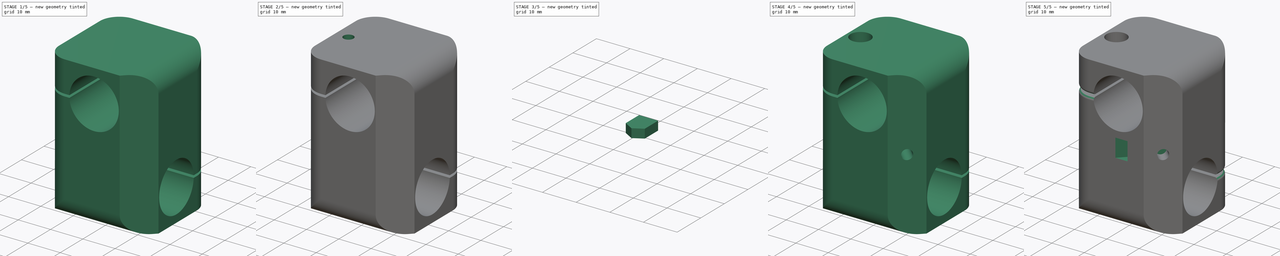
[diagram: build sequence overview — one tinted view per stage of 5, left to right]
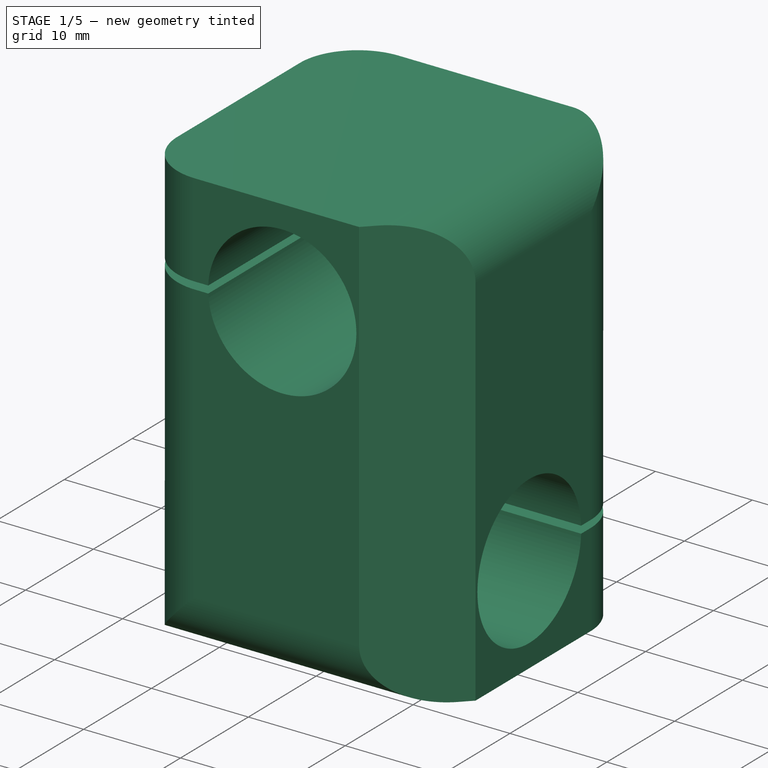
[diagram: stage 1 of 5 — iso view after this stage's code; geometry added in this stage tinted green]
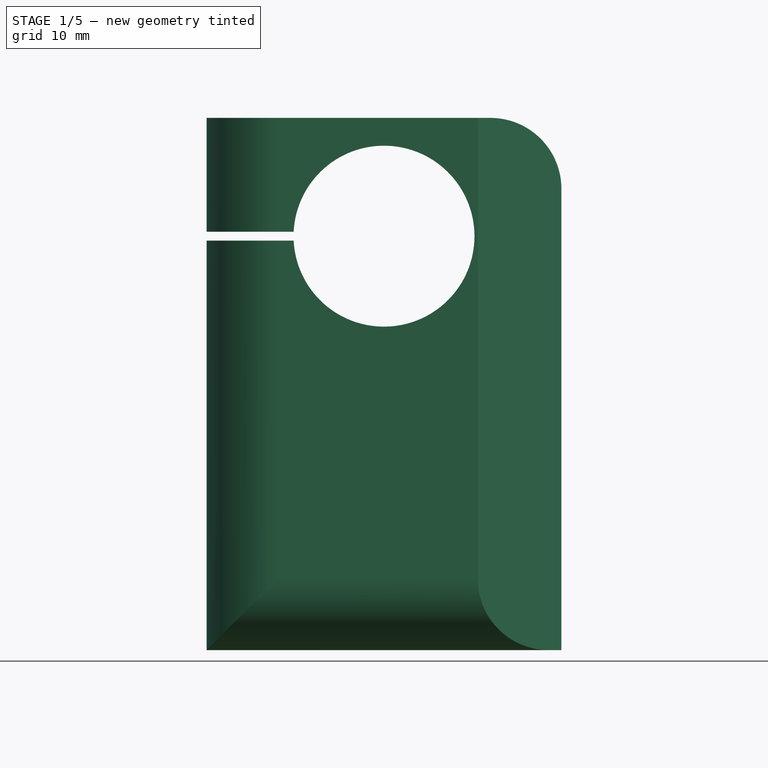
[diagram: stage 1 of 5 — front view after this stage's code; geometry added in this stage tinted green]
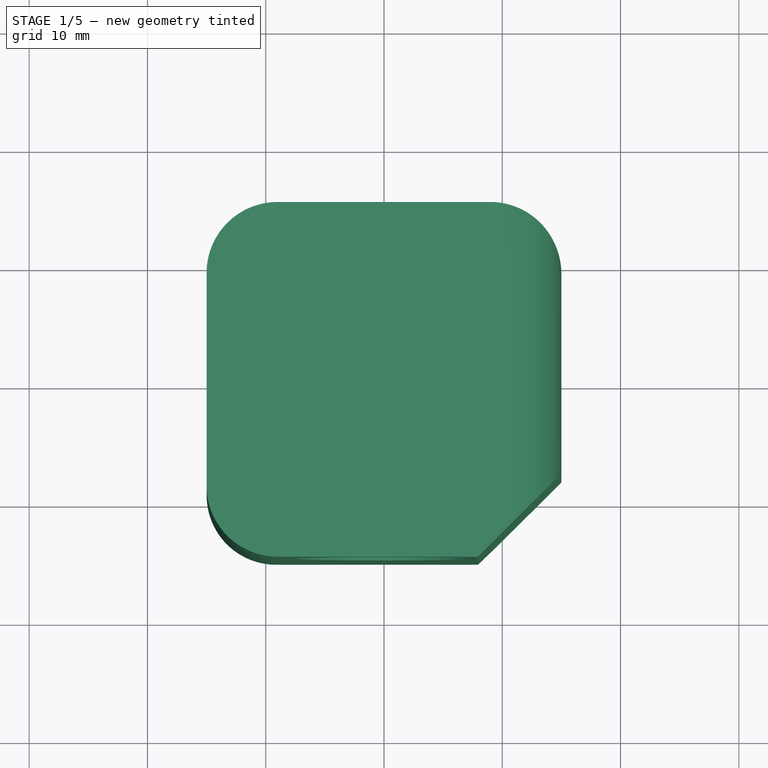
[diagram: stage 1 of 5 — top view after this stage's code; geometry added in this stage tinted green]
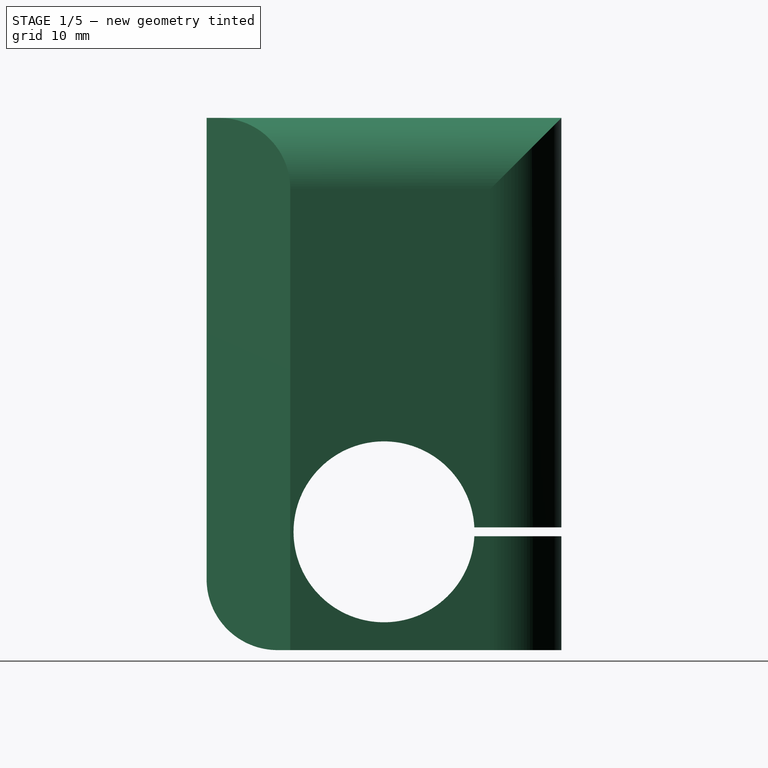
[diagram: stage 1 of 5 — right view after this stage's code; geometry added in this stage tinted green]
FCSTD DOCUMENT  (FreeCAD 0.16RUnknown)
Label: xy-bearings-mount.001
License: All rights reserved
LicenseURL: http://en.wikipedia.org/wiki/All_rights_reserved
objects: Sketcher::SketchObject×11, PartDesign::Pocket×7, Part::Extrusion×4, Part::Cut×3, Part::Fillet×1
note: 33 computed .brp shape members not serialized (recipe doc carries the construction recipe); baked Part::Feature solids carry a one-line shape summary decoded from their .brp

FEATURE [Sketcher::SketchObject] Sketch
  sketch-geometry (16):
    g0: LineSegment StartX=15 StartY=-7.92893 StartZ=0 EndX=7.92893 EndY=-15 EndZ=0
    g1: LineSegment StartX=7.92893 StartY=-15 StartZ=0 EndX=-9 EndY=-15 EndZ=0
    g2: LineSegment StartX=-15 StartY=-9 StartZ=0 EndX=-15 EndY=9 EndZ=0
    g3: LineSegment StartX=-9 StartY=15 StartZ=0 EndX=9 EndY=15 EndZ=0
    g4: LineSegment StartX=15 StartY=9 StartZ=0 EndX=15 EndY=-7.92893 EndZ=0
    g5: LineSegment [constr] StartX=-15 StartY=-9 StartZ=0 EndX=-9 EndY=-9 EndZ=0
    g6: LineSegment [constr] StartX=-9 StartY=-9 StartZ=0 EndX=-9 EndY=-15 EndZ=0
    g7: LineSegment [constr] StartX=-15 StartY=9 StartZ=0 EndX=-9 EndY=9 EndZ=0
    g8: LineSegment [constr] StartX=-9 StartY=9 StartZ=0 EndX=-9 EndY=15 EndZ=0
    g9: LineSegment [constr] StartX=9 StartY=15 StartZ=0 EndX=9 EndY=9 EndZ=0
    g10: LineSegment [constr] StartX=9 StartY=9 StartZ=0 EndX=15 EndY=9 EndZ=0
    g11: ArcOfCircle CenterX=-9 CenterY=9 CenterZ=0 NormalX=0 NormalY=0 NormalZ=1 Radius=6 StartAngle=1.5708 EndAngle=3.14159
    g12: ArcOfCircle CenterX=9 CenterY=9 CenterZ=0 NormalX=0 NormalY=0 NormalZ=1 Radius=6 StartAngle=0 EndAngle=1.5708
    g13: ArcOfCircle CenterX=-9 CenterY=-9 CenterZ=0 NormalX=0 NormalY=0 NormalZ=1 Radius=6 StartAngle=3.14159 EndAngle=4.71239
    g14: LineSegment [constr] StartX=-9 StartY=-9 StartZ=0 EndX=0 EndY=0 EndZ=0
    g15: LineSegment [constr] StartX=0 StartY=0 StartZ=0 EndX=9 EndY=9 EndZ=0
  constraints (43):
    c: Distance(g0) = 10
    c: Horizontal(g1)
    c: Vertical(g2)
    c: Horizontal(g3)
    c: Vertical(g4)
    c: Coincident(g0,g4)
    c: Coincident(g0,g1)
    c: Horizontal(g5)
    c: Coincident(g5,g6)
    c: Vertical(g6)
    c: Horizontal(g7)
    c: Coincident(g7,g8)
    c: Vertical(g8)
    c: Vertical(g9)
    c: Coincident(g9,g10)
    c: Horizontal(g10)
    c: Coincident(g2,g7)
    c: Coincident(g3,g8)
    c: Coincident(g3,g9)
    c: Coincident(g4,g10)
    c: Coincident(g2,g5)
    c: Coincident(g1,g6)
    c: Coincident(g5,g13)
    c: Coincident(g2,g13)
    c: Coincident(g1,g13)
    c: Coincident(g2,g11)
    c: Coincident(g7,g11)
    c: Coincident(g3,g11)
    c: Coincident(g9,g12)
    c: Coincident(g3,g12)
    c: Coincident(g4,g12)
    c: Equal(g11,g12)
    c: Equal(g12,g13)
    c: Radius(g11) = 6
    c: DistanceX(g2,g4) = 30
    c: Coincident(g14,g15)
    c: Coincident(g9,g15)
    c: Coincident(g5,g14)
    c: Coincident(g14,g-1)
    c: Parallel(g14,g15)
    c: Equal(g14,g15)
    c: Equal(g3,g2)
    c: Equal(g4,g1)
FEATURE [Part::Extrusion] Extrude
  Base = -> Sketch
  Dir = (0,0,45)
  Solid = true
FEATURE [Sketcher::SketchObject] Sketch001
  ExternalGeometry = -> [Extrude]
  Placement = pos=(-15,0,0) rot=(0.57735,-0.57735,-0.57735;2.0944rad)
  Support = -> Extrude [Face5]
  sketch-geometry (11):
    g0: LineSegment StartX=9 StartY=0 StartZ=0 EndX=15 EndY=0 EndZ=0
    g1: LineSegment StartX=15 StartY=0 StartZ=0 EndX=15 EndY=6 EndZ=0
    g2: ArcOfCircle CenterX=9 CenterY=6 CenterZ=0 NormalX=0 NormalY=0 NormalZ=1 Radius=6 StartAngle=4.71239 EndAngle=6.28319
    g3: LineSegment [constr] StartX=-9 StartY=0 StartZ=0 EndX=0 EndY=10 EndZ=0
    g4: LineSegment [constr] StartX=0 StartY=10 StartZ=0 EndX=0 EndY=35 EndZ=0
    g5: LineSegment [constr] StartX=0 StartY=35 StartZ=0 EndX=-9 EndY=45 EndZ=0
    g6: ArcOfCircle CenterX=0 CenterY=10 CenterZ=0 NormalX=0 NormalY=0 NormalZ=1 Radius=7.65 StartAngle=3.19063 EndAngle=9.37574
    g7: LineSegment [constr] StartX=-7.6408 StartY=9.625 StartZ=0 EndX=-7.6408 EndY=10.375 EndZ=0
    g8: LineSegment StartX=-7.6408 StartY=10.375 StartZ=0 EndX=-15.6408 EndY=10.375 EndZ=0
    g9: LineSegment StartX=-15.6408 StartY=10.375 StartZ=0 EndX=-15.6408 EndY=9.625 EndZ=0
    g10: LineSegment StartX=-15.6408 StartY=9.625 StartZ=0 EndX=-7.6408 EndY=9.625 EndZ=0
  constraints (31):
    c: Horizontal(g0)
    c: Coincident(g0,g1)
    c: Vertical(g1)
    c: Coincident(g0,g2)
    c: Coincident(g1,g2)
    c: Equal(g1,g0)
    c: Coincident(g0,g-4)
    c: PointOnObject(g2,g-4)
    c: DistanceX(g0,g0) = 6
    c: Coincident(g3,g4)
    c: Vertical(g4)
    c: Coincident(g4,g5)
    c: Coincident(g5,g-3)
    c: Coincident(g3,g-3)
    c: Equal(g3,g5)
    c: DistanceY(g4,g4) = 25
    c: Coincident(g6,g3)
    c: PointOnObject(g3,g-2)
    c: Vertical(g7)
    c: Coincident(g6,g7)
    c: Coincident(g6,g7)
    c: DistanceY(g7,g7) = 0.75
    c: Radius(g6) = 7.65
    c: Horizontal(g8)
    c: Coincident(g8,g9)
    c: Vertical(g9)
    c: Coincident(g9,g10)
    c: Horizontal(g10)
    c: Coincident(g6,g10)
    c: Coincident(g6,g8)
    c: DistanceX(g10,g10) = 8
FEATURE [PartDesign::Pocket] Pocket
  Length = 5
  Sketch = -> Sketch001
  Type = 1
FEATURE [Sketcher::SketchObject] Sketch002
  ExternalGeometry = -> [Pocket]
  Placement = pos=(0,15,0) rot=(0,0.707107,0.707107;3.14159rad)
  Support = -> Pocket [Face17]
  sketch-geometry (11):
    g0: ArcOfCircle CenterX=-9 CenterY=39 CenterZ=0 NormalX=0 NormalY=0 NormalZ=1 Radius=6 StartAngle=1.5708 EndAngle=3.14159
    g1: LineSegment StartX=-15 StartY=39 StartZ=0 EndX=-15 EndY=45 EndZ=0
    g2: LineSegment StartX=-15 StartY=45 StartZ=0 EndX=-9 EndY=45 EndZ=0
    g3: LineSegment [constr] StartX=9 StartY=45 StartZ=0 EndX=0 EndY=35 EndZ=0
    g4: LineSegment [constr] StartX=0 StartY=35 StartZ=0 EndX=0 EndY=10 EndZ=0
    g5: LineSegment [constr] StartX=0 StartY=10 StartZ=0 EndX=9 EndY=0 EndZ=0
    g6: ArcOfCircle CenterX=0 CenterY=35 CenterZ=0 NormalX=0 NormalY=0 NormalZ=1 Radius=7.65 StartAngle=0.0490393 EndAngle=6.23415
    g7: LineSegment [constr] StartX=7.6408 StartY=34.625 StartZ=0 EndX=7.6408 EndY=35.375 EndZ=0
    g8: LineSegment StartX=7.6408 StartY=35.375 StartZ=0 EndX=15.6408 EndY=35.375 EndZ=0
    g9: LineSegment StartX=15.6408 StartY=35.375 StartZ=0 EndX=15.6408 EndY=34.625 EndZ=0
    g10: LineSegment StartX=15.6408 StartY=34.625 StartZ=0 EndX=7.6408 EndY=34.625 EndZ=0
  constraints (31):
    c: Vertical(g1)
    c: Coincident(g1,g2)
    c: Horizontal(g2)
    c: Coincident(g0,g2)
    c: Coincident(g0,g-5)
    c: Coincident(g0,g1)
    c: Equal(g1,g2)
    c: PointOnObject(g0,g-5)
    c: DistanceX(g2,g2) = 6
    c: Coincident(g3,g4)
    c: Vertical(g4)
    c: Coincident(g4,g5)
    c: Coincident(g5,g-4)
    c: Coincident(g3,g-3)
    c: DistanceY(g4,g4) = 25
    c: Equal(g3,g5)
    c: Vertical(g7)
    c: Coincident(g6,g7)
    c: Coincident(g6,g7)
    c: DistanceY(g7,g7) = 0.75
    c: Coincident(g3,g6)
    c: PointOnObject(g3,g-2)
    c: Radius(g6) = 7.65
    c: Horizontal(g8)
    c: Coincident(g8,g9)
    c: Vertical(g9)
    c: Coincident(g9,g10)
    c: Horizontal(g10)
    c: Coincident(g6,g8)
    c: Coincident(g6,g10)
    c: DistanceX(g8,g8) = 8
FEATURE [PartDesign::Pocket] Pocket001
  Length = 5
  Sketch = -> Sketch002
  Type = 1
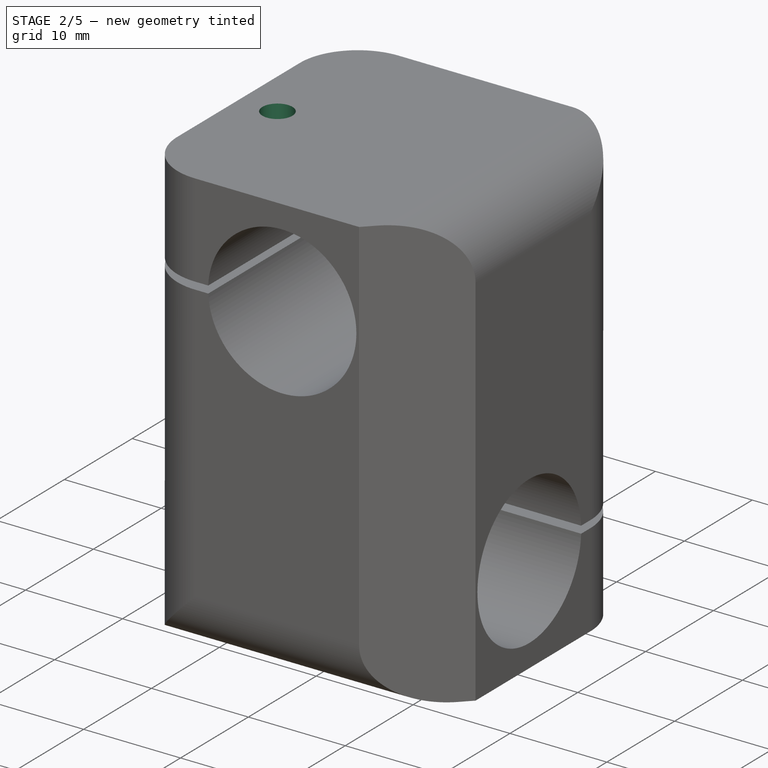
[diagram: stage 2 of 5 — iso view after this stage's code; geometry added in this stage tinted green]
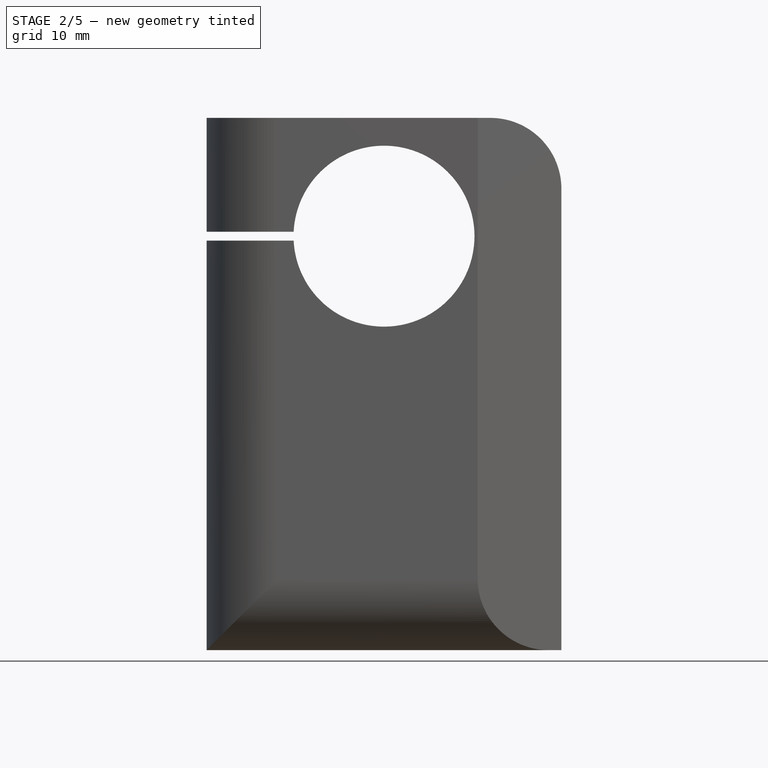
[diagram: stage 2 of 5 — front view after this stage's code; geometry added in this stage tinted green]
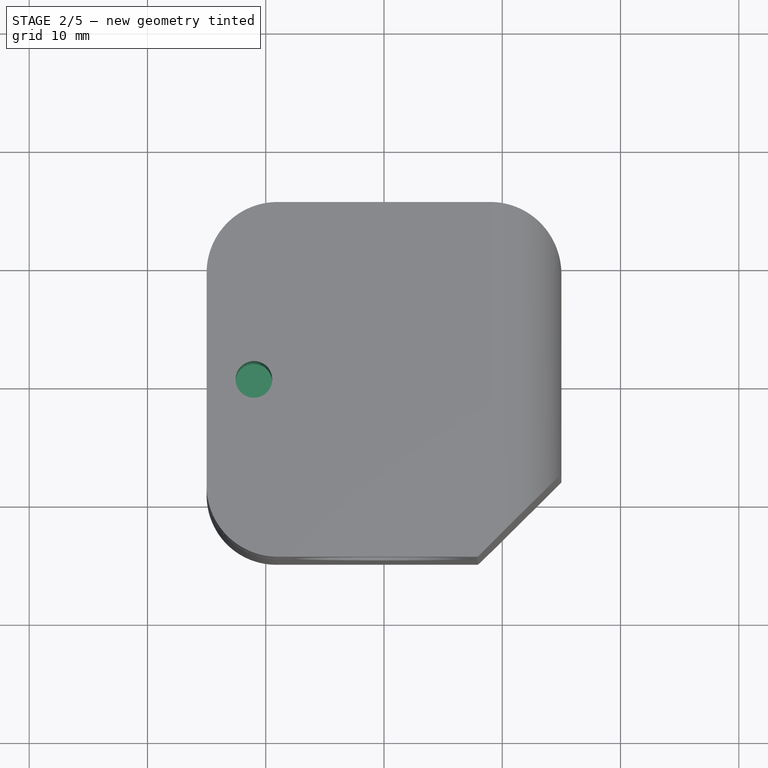
[diagram: stage 2 of 5 — top view after this stage's code; geometry added in this stage tinted green]
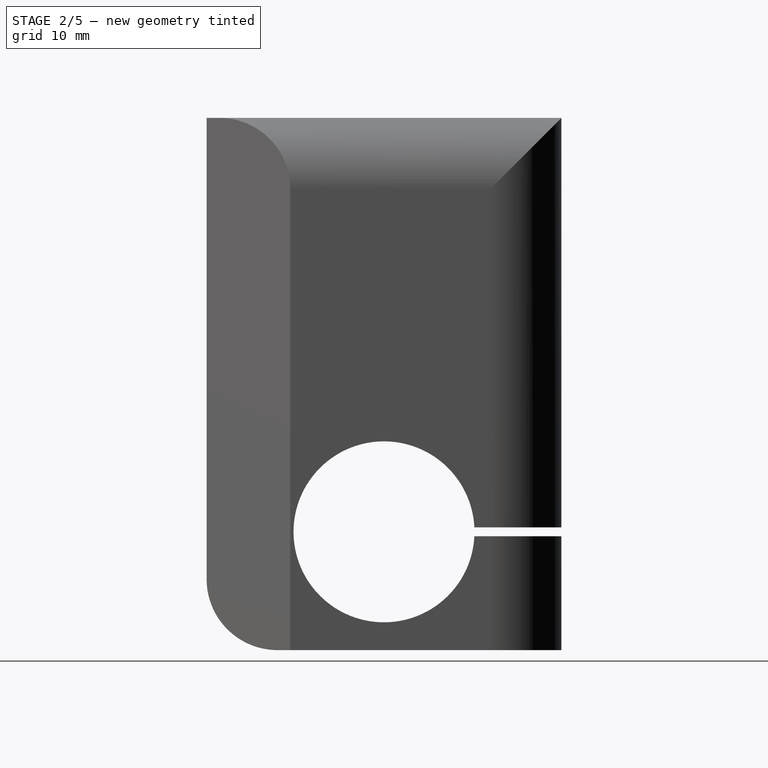
[diagram: stage 2 of 5 — right view after this stage's code; geometry added in this stage tinted green]
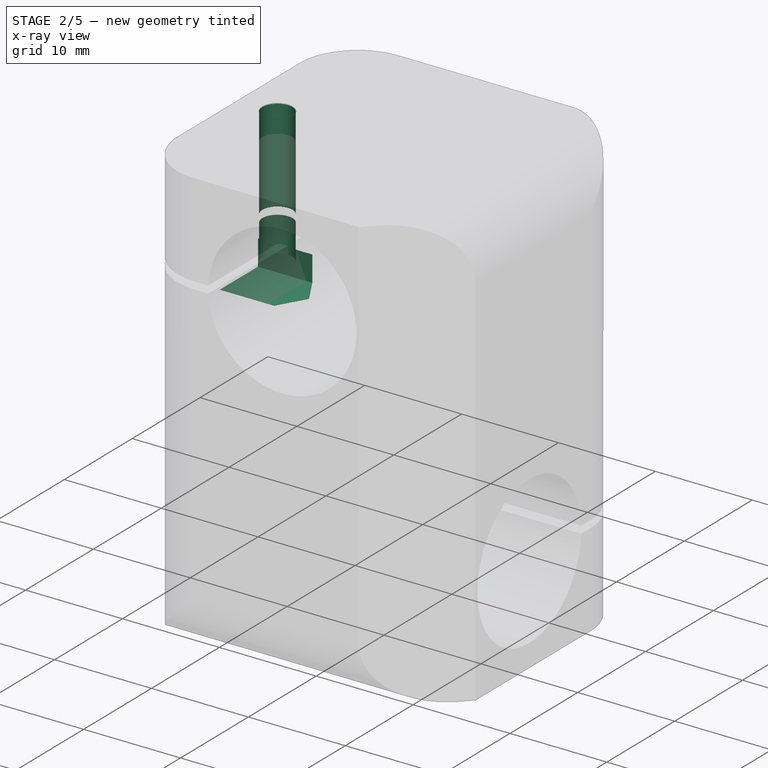
[diagram: stage 2 of 5 — x-ray composite at the iso view; earlier geometry ghosted, this stage's added geometry solid]
FEATURE [Sketcher::SketchObject] Sketch003
  ExternalGeometry = -> [Pocket001]
  Placement = pos=(0,0,45) rot=(0,0,1;0rad)
  Support = -> Pocket001 [Face15]
  sketch-geometry (1):
    g0: Circle CenterX=-11 CenterY=0 CenterZ=0 NormalX=0 NormalY=0 NormalZ=1 Radius=1.55
  constraints (3):
    c: PointOnObject(g0,g-1)
    c: Radius(g0) = 1.55
    c: DistanceX(g-3,g0) = 4
FEATURE [PartDesign::Pocket] Pocket002
  Length = 16
  Sketch = -> Sketch003
  Type = 0
FEATURE [Sketcher::SketchObject] Sketch004
  ExternalGeometry = -> [Pocket002]
  Placement = pos=(0,0,45) rot=(0,0,1;0rad)
  Support = -> Pocket002 [Face15]
  sketch-geometry (6):
    g0: LineSegment [constr] StartX=-11 StartY=0 StartZ=0 EndX=-7.73797 EndY=0 EndZ=0
    g1: LineSegment StartX=-7.73797 StartY=0 StartZ=0 EndX=-9.36899 EndY=2.825 EndZ=0
    g2: LineSegment StartX=-9.36899 StartY=2.825 StartZ=0 EndX=-15 EndY=2.825 EndZ=0
    g3: LineSegment StartX=-15 StartY=2.825 StartZ=0 EndX=-15 EndY=-2.825 EndZ=0
    g4: LineSegment StartX=-15 StartY=-2.825 StartZ=0 EndX=-9.36899 EndY=-2.825 EndZ=0
    g5: LineSegment StartX=-9.36899 StartY=-2.825 StartZ=0 EndX=-7.73797 EndY=0 EndZ=0
  constraints (17):
    c: Horizontal(g0)
    c: Coincident(g0,g1)
    c: Coincident(g1,g2)
    c: Coincident(g2,g3)
    c: Vertical(g3)
    c: Coincident(g3,g4)
    c: Horizontal(g4)
    c: Coincident(g4,g5)
    c: Coincident(g0,g5)
    c: Coincident(g0,g-4)
    c: Horizontal(g2)
    c: Equal(g2,g4)
    c: Equal(g5,g0)
    c: Equal(g0,g1)
    c: Angle(g1,g5) = 2.0944
    c: DistanceY(g3,g3) = 5.65
    c: PointOnObject(g2,g-3)
FEATURE [Part::Extrusion] Extrude001
  Base = -> Sketch004
  Dir = (0,0,-2.65)
  Placement = pos=(0,0,-14) rot=(0,0,1;0rad)
  Solid = true
FEATURE [Part::Cut] Cut
  Base = -> Pocket002
  Tool = -> Extrude001
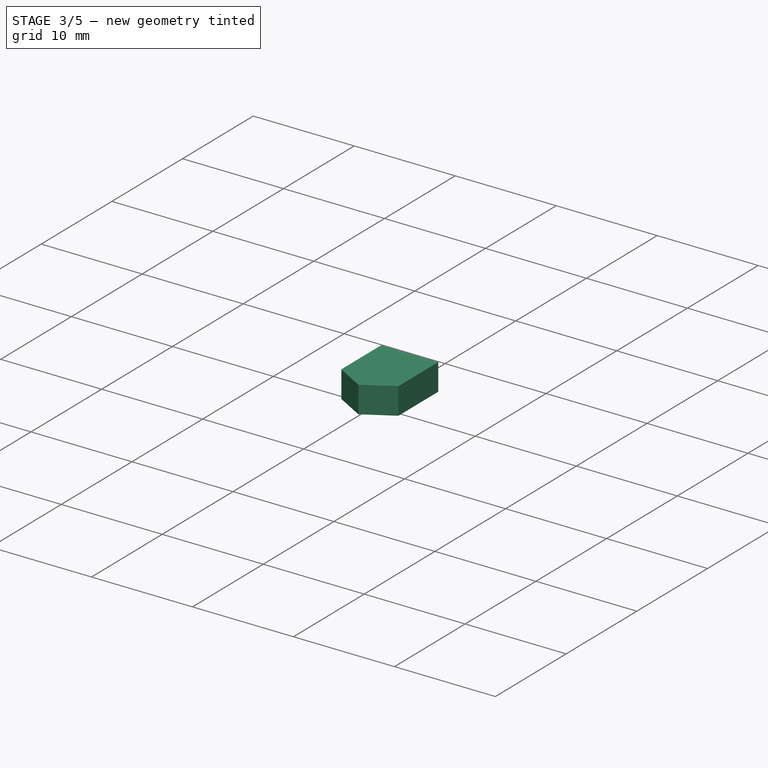
[diagram: stage 3 of 5 — iso view after this stage's code; geometry added in this stage tinted green]
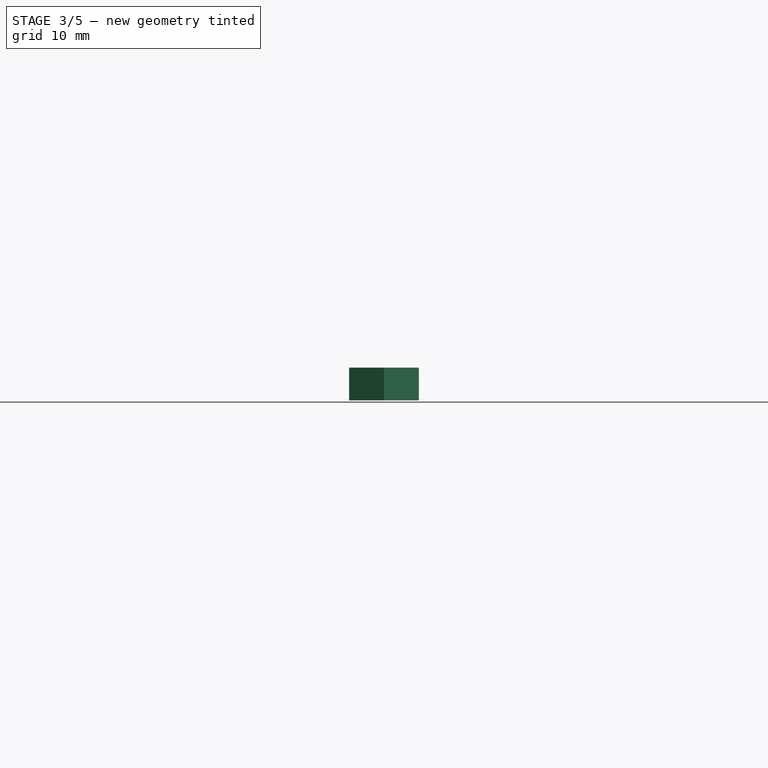
[diagram: stage 3 of 5 — front view after this stage's code; geometry added in this stage tinted green]
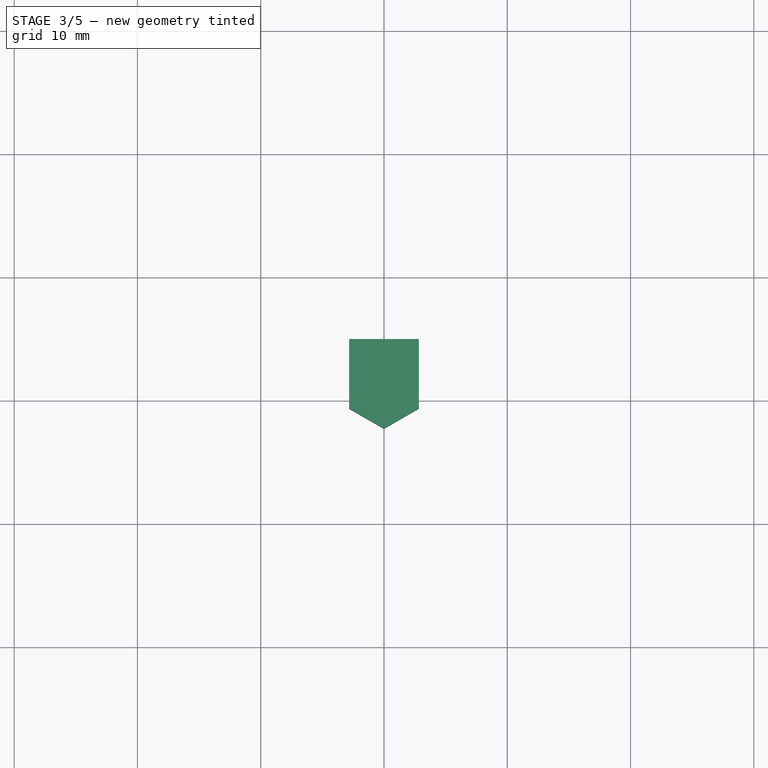
[diagram: stage 3 of 5 — top view after this stage's code; geometry added in this stage tinted green]
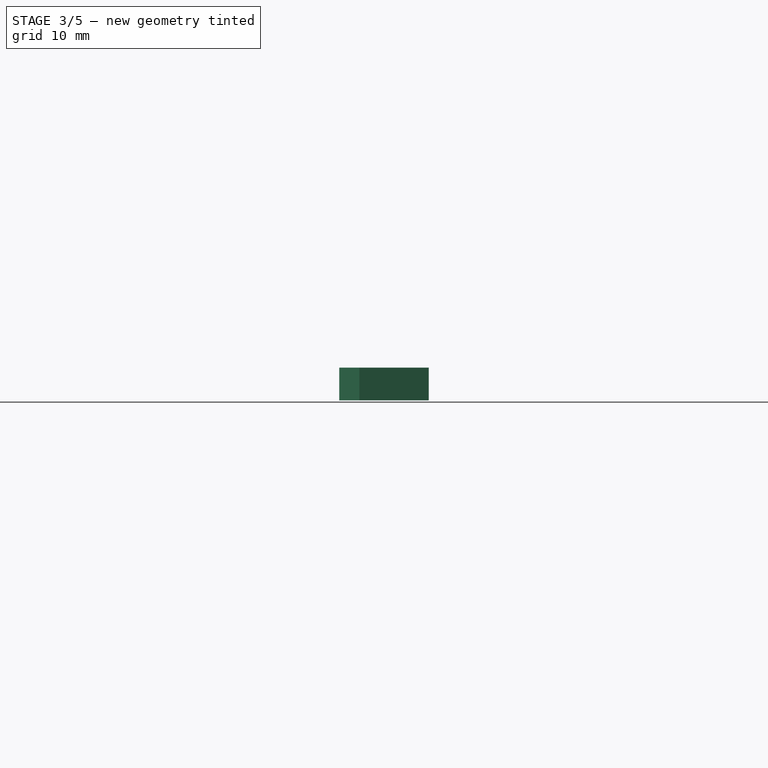
[diagram: stage 3 of 5 — right view after this stage's code; geometry added in this stage tinted green]
FEATURE [Sketcher::SketchObject] Sketch005
  ExternalGeometry = -> [Cut]
  Placement = pos=(0,0,45) rot=(0,0,1;0rad)
  Support = -> Cut [Face15]
  sketch-geometry (1):
    g0: Circle CenterX=-11 CenterY=0 CenterZ=0 NormalX=0 NormalY=0 NormalZ=1 Radius=3.1
  constraints (2):
    c: Coincident(g0,g-3)
    c: Radius(g0) = 3.1
FEATURE [PartDesign::Pocket] Pocket003
  Length = 5
  Sketch = -> Sketch005
  Type = 0
FEATURE [Sketcher::SketchObject] Sketch006
  ExternalGeometry = -> [Pocket003]
  Placement = pos=(0,0,0) rot=(1,0,0;3.14159rad)
  Support = -> Pocket003 [Face2]
  sketch-geometry (1):
    g0: Circle CenterX=0 CenterY=-11 CenterZ=0 NormalX=0 NormalY=0 NormalZ=1 Radius=1.55
  constraints (3):
    c: PointOnObject(g0,g-2)
    c: DistanceY(g-3,g0) = 4
    c: Radius(g0) = 1.55
FEATURE [PartDesign::Pocket] Pocket004
  Length = 16
  Sketch = -> Sketch006
  Type = 0
FEATURE [Sketcher::SketchObject] Sketch007
  ExternalGeometry = -> [Pocket004]
  Placement = pos=(0,0,0) rot=(1,0,0;3.14159rad)
  Support = -> Pocket004 [Face2]
  sketch-geometry (6):
    g0: LineSegment [constr] StartX=0 StartY=-11 StartZ=0 EndX=0 EndY=-7.73797 EndZ=0
    g1: LineSegment StartX=0 StartY=-7.73797 StartZ=0 EndX=-2.825 EndY=-9.36899 EndZ=0
    g2: LineSegment StartX=-2.825 StartY=-9.36899 StartZ=0 EndX=-2.825 EndY=-15 EndZ=0
    g3: LineSegment StartX=-2.825 StartY=-15 StartZ=0 EndX=2.825 EndY=-15 EndZ=0
    g4: LineSegment StartX=2.825 StartY=-15 StartZ=0 EndX=2.825 EndY=-9.36899 EndZ=0
    g5: LineSegment StartX=2.825 StartY=-9.36899 StartZ=0 EndX=0 EndY=-7.73797 EndZ=0
  constraints (17):
    c: Vertical(g0)
    c: Coincident(g0,g1)
    c: Coincident(g1,g2)
    c: Vertical(g2)
    c: Coincident(g2,g3)
    c: Horizontal(g3)
    c: Coincident(g3,g4)
    c: Vertical(g4)
    c: Coincident(g4,g5)
    c: Coincident(g0,g5)
    c: Coincident(g0,g-3)
    c: Equal(g1,g0)
    c: Equal(g0,g5)
    c: Angle(g1,g5) = 2.0944
    c: Equal(g2,g4)
    c: DistanceX(g3,g3) = 5.65
    c: PointOnObject(g2,g-4)
FEATURE [Part::Extrusion] Extrude002
  Base = -> Sketch007
  Dir = (0,0,2.65)
  Placement = pos=(0,0,14) rot=(0,0,1;0rad)
  Solid = true
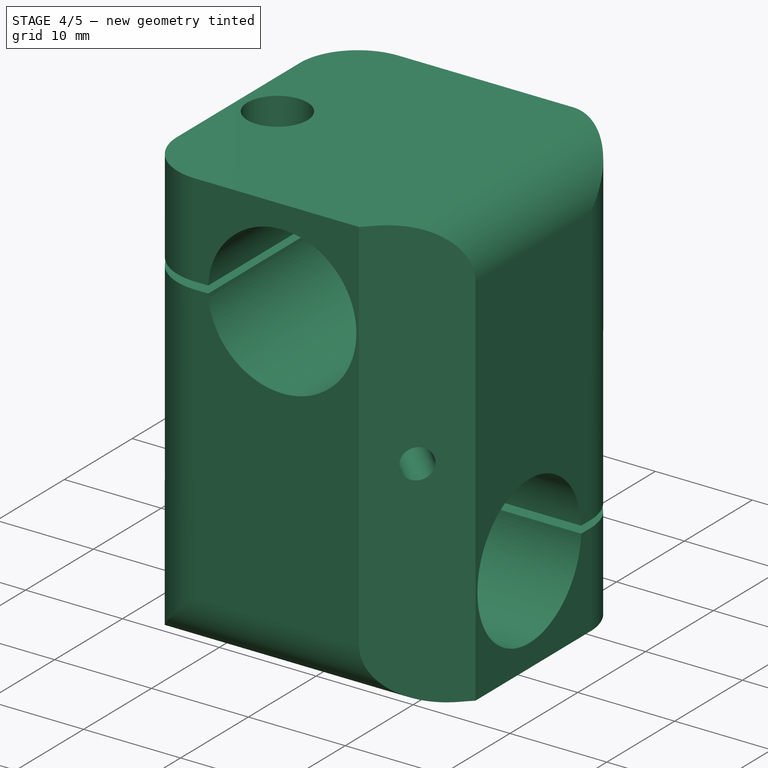
[diagram: stage 4 of 5 — iso view after this stage's code; geometry added in this stage tinted green]
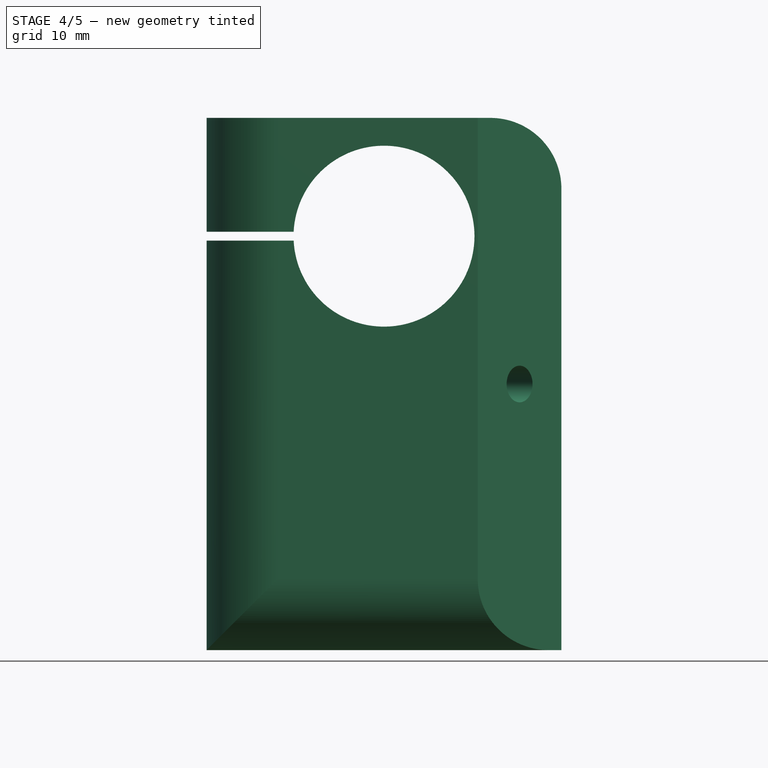
[diagram: stage 4 of 5 — front view after this stage's code; geometry added in this stage tinted green]
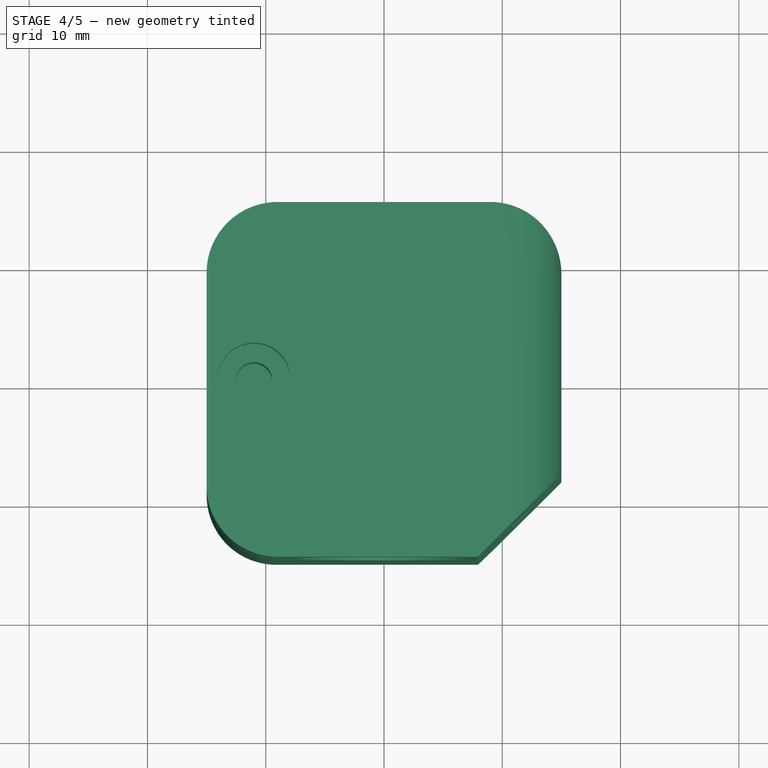
[diagram: stage 4 of 5 — top view after this stage's code; geometry added in this stage tinted green]
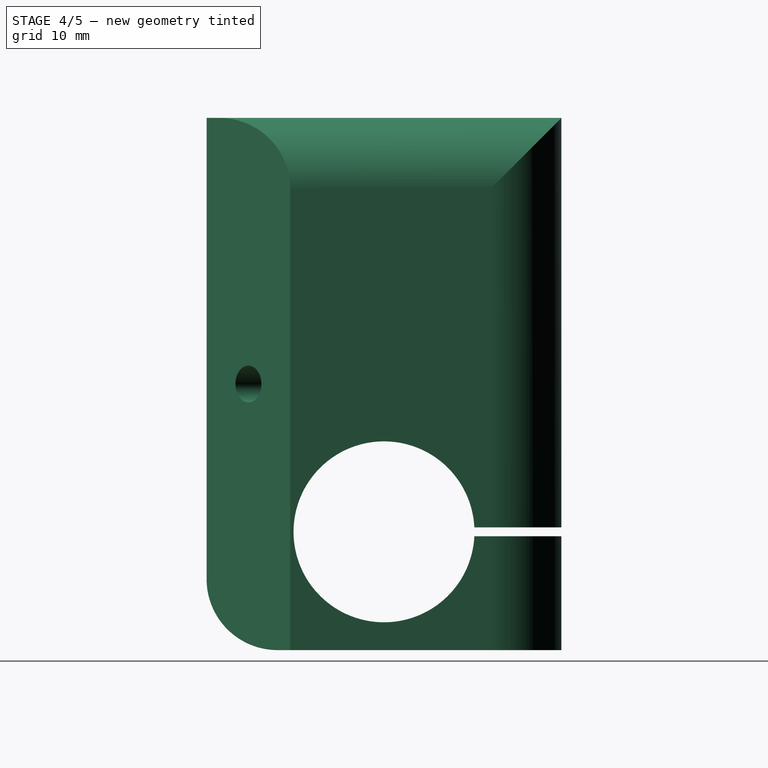
[diagram: stage 4 of 5 — right view after this stage's code; geometry added in this stage tinted green]
FEATURE [Part::Cut] Cut001
  Base = -> Pocket004
  Tool = -> Extrude002
FEATURE [Sketcher::SketchObject] Sketch008
  ExternalGeometry = -> [Cut001]
  Placement = pos=(0,0,0) rot=(1,0,0;3.14159rad)
  Support = -> Cut001 [Face2]
  sketch-geometry (1):
    g0: Circle CenterX=0 CenterY=-11 CenterZ=0 NormalX=0 NormalY=0 NormalZ=1 Radius=3.1
  constraints (2):
    c: Coincident(g0,g-3)
    c: Radius(g0) = 3.1
FEATURE [PartDesign::Pocket] Pocket005
  Length = 5
  Sketch = -> Sketch008
  Type = 0
FEATURE [Sketcher::SketchObject] Sketch009
  ExternalGeometry = -> [Pocket005]
  Placement = pos=(11.4645,-11.4645,0) rot=(0.862856,0.357407,0.357407;1.71777rad)
  Support = -> Pocket005 [Face3]
  sketch-geometry (3):
    g0: LineSegment [constr] StartX=-5 StartY=6 StartZ=0 EndX=0 EndY=22.5 EndZ=0
    g1: LineSegment [constr] StartX=0 StartY=22.5 StartZ=0 EndX=5 EndY=39 EndZ=0
    g2: Circle CenterX=0 CenterY=22.5 CenterZ=0 NormalX=0 NormalY=0 NormalZ=1 Radius=1.55
  constraints (7):
    c: Coincident(g0,g1)
    c: Coincident(g0,g-4)
    c: Coincident(g1,g-3)
    c: Equal(g0,g1)
    c: Parallel(g0,g1)
    c: Coincident(g0,g2)
    c: Radius(g2) = 1.55
FEATURE [PartDesign::Pocket] Pocket006
  Length = 10
  Sketch = -> Sketch009
  Type = 0
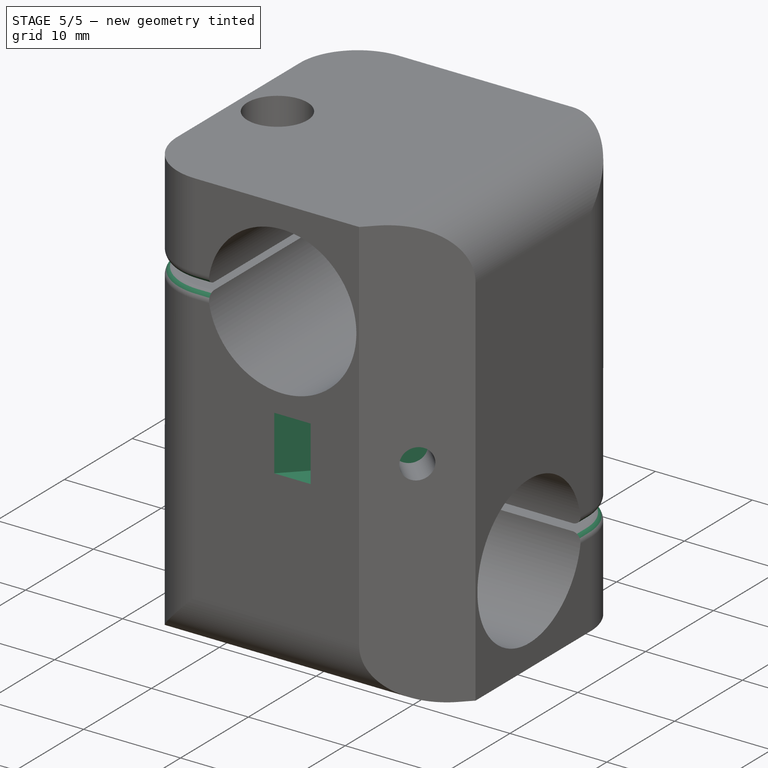
[diagram: stage 5 of 5 — iso view after this stage's code; geometry added in this stage tinted green]
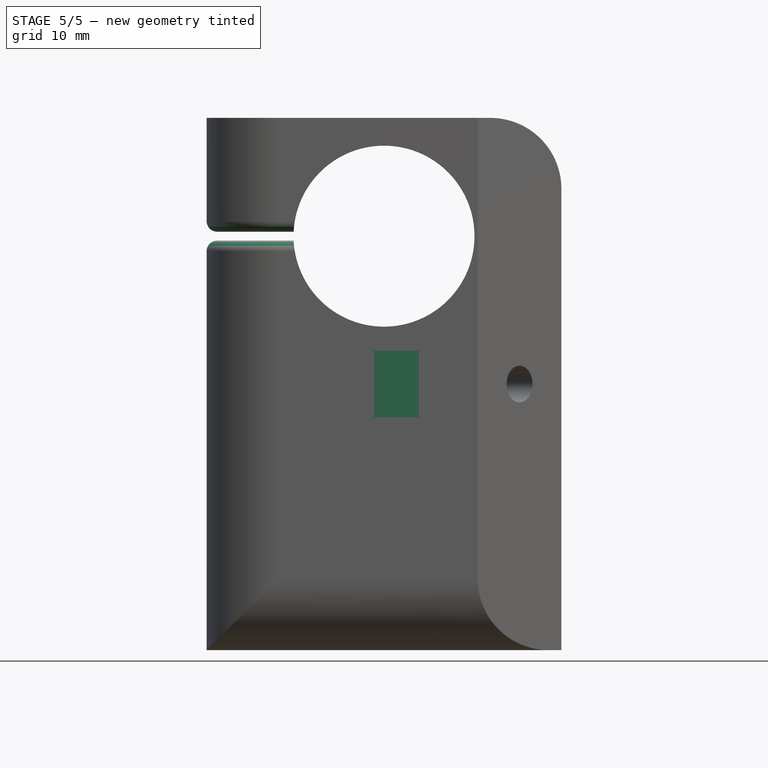
[diagram: stage 5 of 5 — front view after this stage's code; geometry added in this stage tinted green]
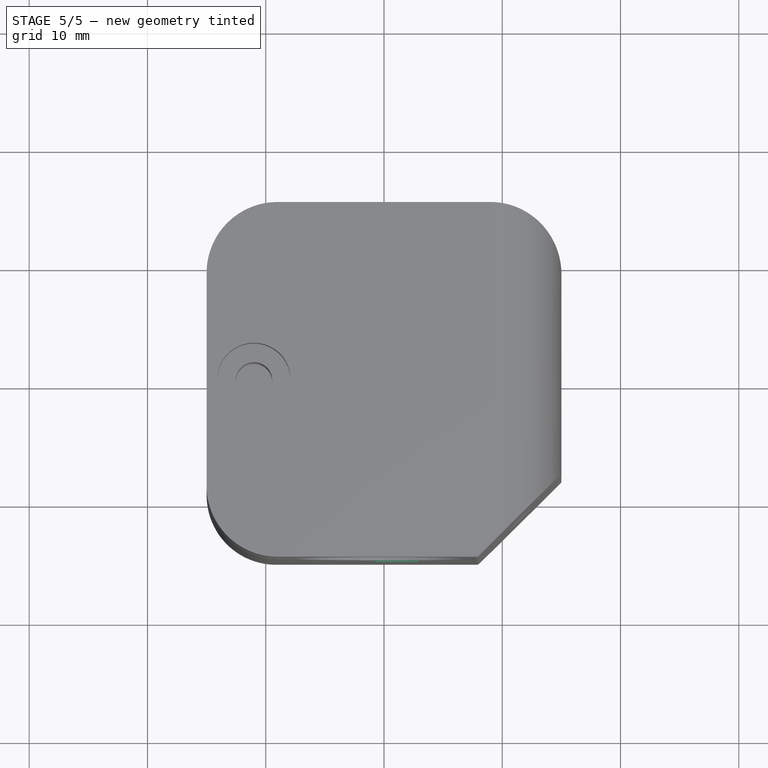
[diagram: stage 5 of 5 — top view after this stage's code; geometry added in this stage tinted green]
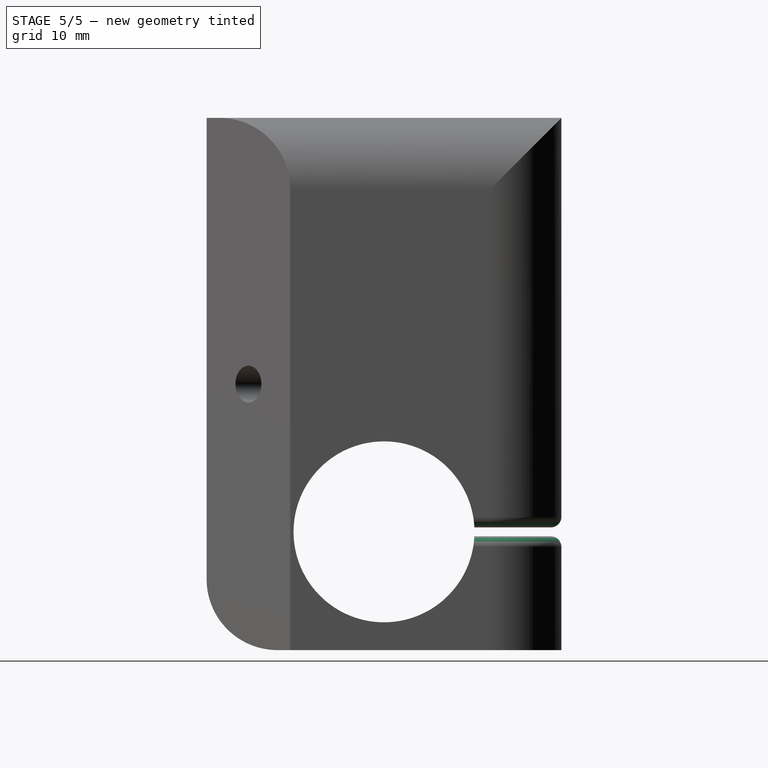
[diagram: stage 5 of 5 — right view after this stage's code; geometry added in this stage tinted green]
FEATURE [Sketcher::SketchObject] Sketch010
  ExternalGeometry = -> [Pocket006]
  Placement = pos=(11.4645,-11.4645,0) rot=(0.862856,0.357407,0.357407;1.71777rad)
  Support = -> Pocket006 [Face3]
  sketch-geometry (6):
    g0: LineSegment [constr] StartX=0 StartY=22.5 StartZ=0 EndX=3.26203 EndY=22.5 EndZ=0
    g1: LineSegment StartX=3.26203 StartY=22.5 StartZ=0 EndX=1.63101 EndY=25.325 EndZ=0
    g2: LineSegment StartX=1.63101 StartY=25.325 StartZ=0 EndX=-13.369 EndY=25.325 EndZ=0
    g3: LineSegment StartX=-13.369 StartY=25.325 StartZ=0 EndX=-13.369 EndY=19.675 EndZ=0
    g4: LineSegment StartX=-13.369 StartY=19.675 StartZ=0 EndX=1.63101 EndY=19.675 EndZ=0
    g5: LineSegment StartX=1.63101 StartY=19.675 StartZ=0 EndX=3.26203 EndY=22.5 EndZ=0
  constraints (17):
    c: Horizontal(g0)
    c: Coincident(g0,g1)
    c: Coincident(g1,g2)
    c: Horizontal(g2)
    c: Coincident(g2,g3)
    c: Vertical(g3)
    c: Coincident(g3,g4)
    c: Horizontal(g4)
    c: Coincident(g4,g5)
    c: Coincident(g0,g5)
    c: Coincident(g0,g-3)
    c: Equal(g5,g0)
    c: Equal(g0,g1)
    c: Angle(g1,g5) = 2.0944
    c: Equal(g4,g2)
    c: DistanceY(g3,g3) = 5.65
    c: DistanceX(g4,g4) = 15
FEATURE [Part::Extrusion] Extrude003
  Base = -> Sketch010
  Dir = (-1.88,1.88,0)
  Placement = pos=(-2.5,2.5,0) rot=(0,0,1;0rad)
  Solid = true
FEATURE [Part::Cut] Cut002
  Base = -> Pocket006
  Tool = -> Extrude003
FEATURE [Part::Fillet] Fillet
  Base = -> Cut002
  Edges = 9 edges r=0.9: [Edge25,Edge30,Edge32,Edge43,Edge45,Edge46,Edge47,Edge48,Edge98]
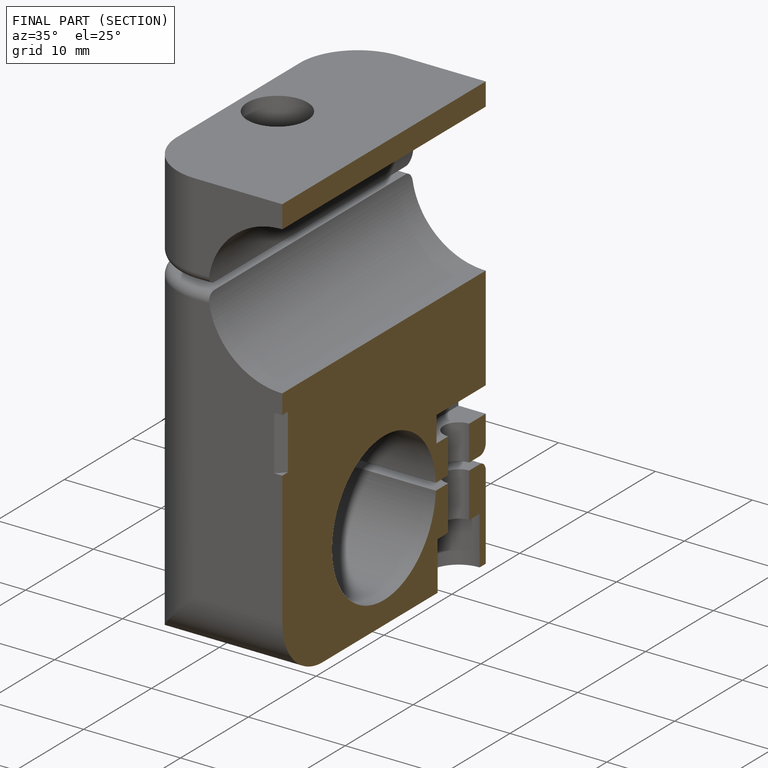
[diagram: finished part — half-section view (interior)]
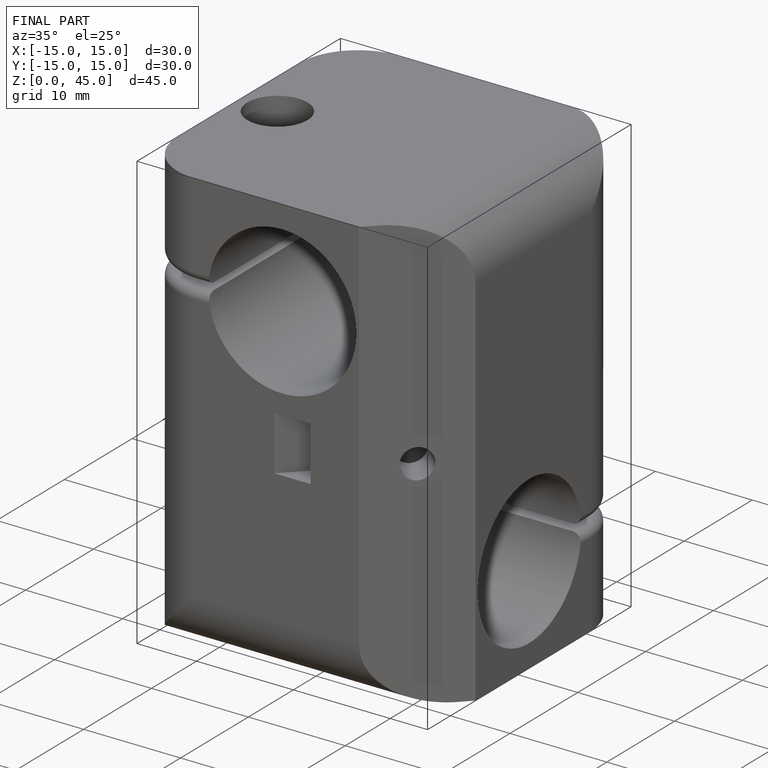
[diagram: finished part — iso view with bounding-box wireframe]
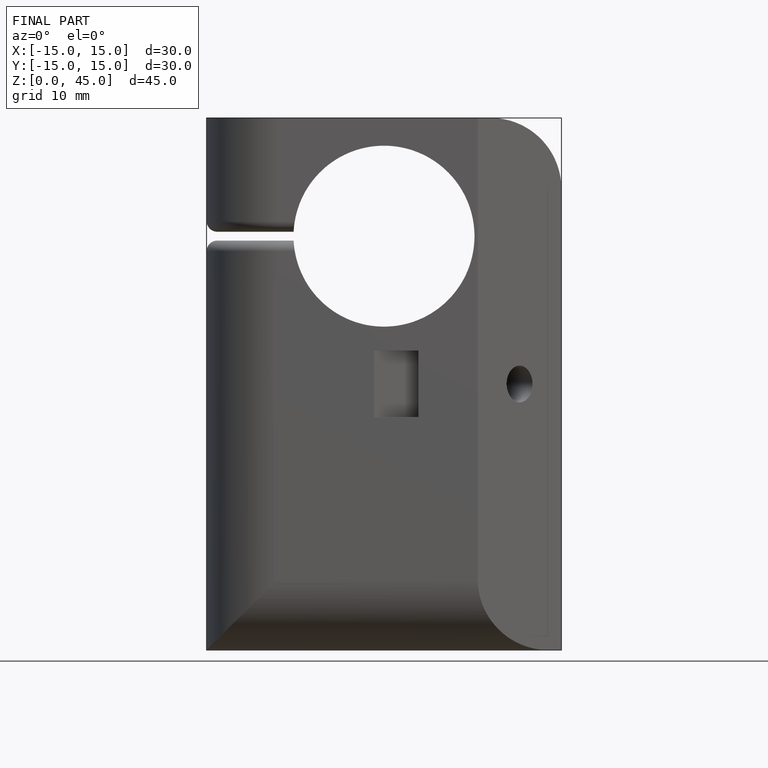
[diagram: finished part — front view with bounding-box wireframe]
